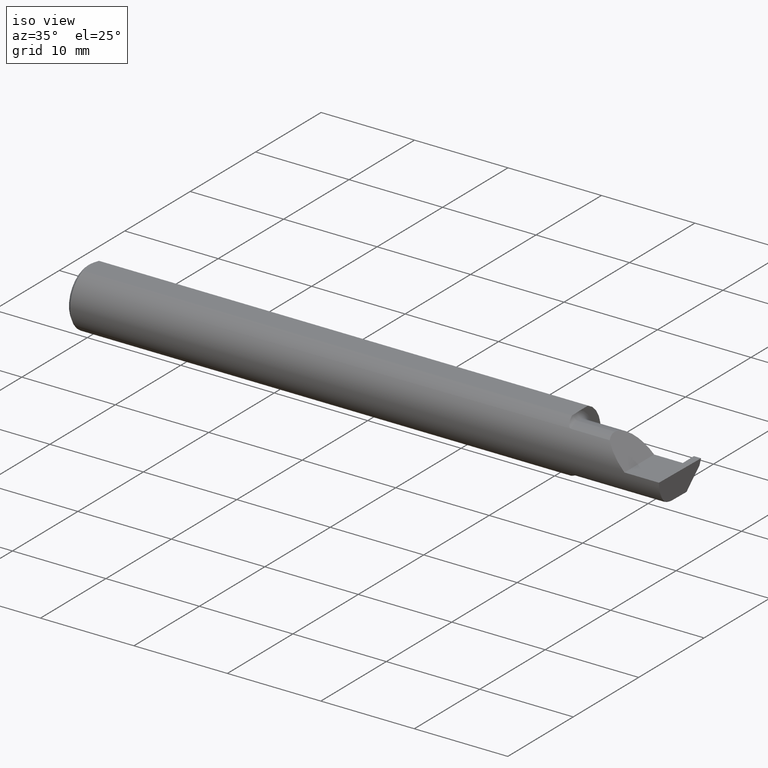
[diagram: clean part render]
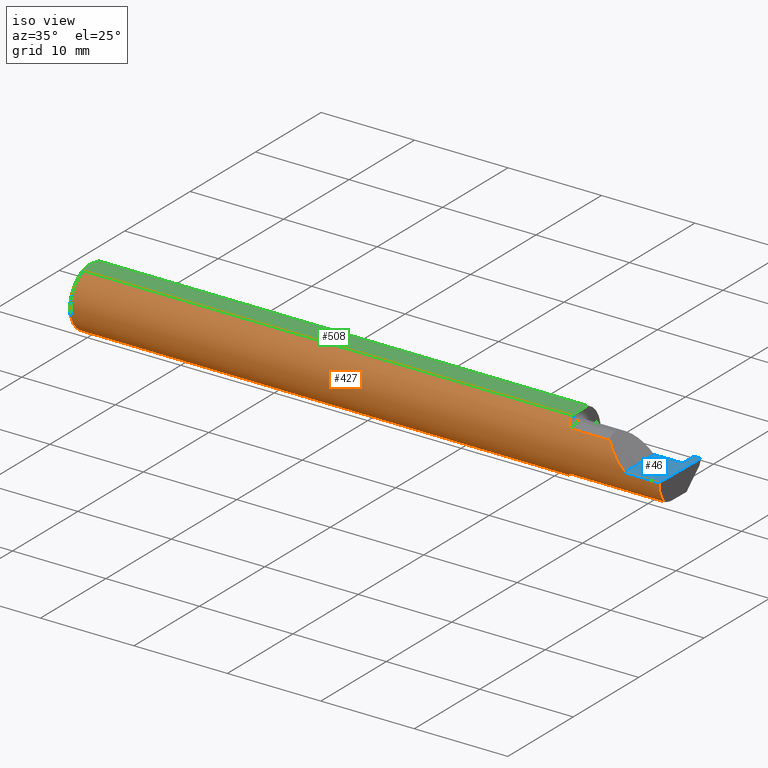
[diagram: same view with three faces highlighted in distinct colors, each labeled with its STEP entity id]
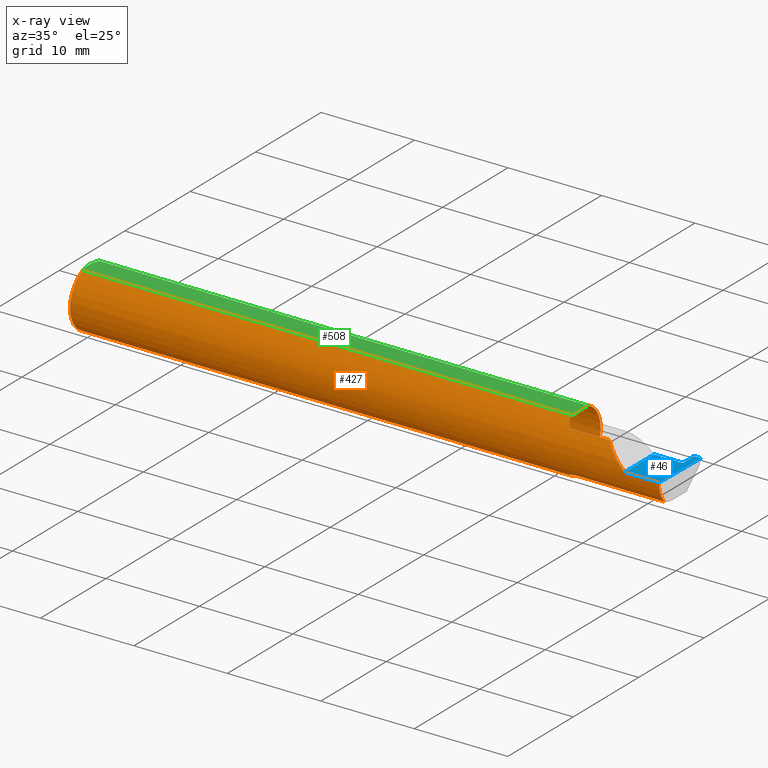
[diagram: x-ray of the same camera — body ghosted, the three highlighted faces saturated]
A machine part, iso view with three faces highlighted in distinct colors.
The next image is the same camera in x-ray (body ghosted, the three faces saturated) — at least one of them is partly hidden behind the body in this view.
Their STEP definitions:

[orange] entity #427 — the highlighted cylindrical surface (edge-blend (fillet) strip) has radius 3.1712 mm, axis along (-1, -0, -0).
#1 = ORIENTED_EDGE ( 'NONE', *, *, #593, .T. ) ;
#4 = VECTOR ( 'NONE', #554, 39.37007874015748143 ) ;
#8 = CARTESIAN_POINT ( 'NONE',  ( 2.075756598855984070, -0.04385000000000000009, -0.1168961077196328247 ) ) ;
#9 = LINE ( 'NONE', #251, #777 ) ;
#11 = EDGE_CURVE ( 'NONE', #609, #748, #454, .T. ) ;
#20 = CARTESIAN_POINT ( 'NONE',  ( 2.350000000000000089, -0.1248500000000000026, 1.836970198721028825E-17 ) ) ;
#21 = CARTESIAN_POINT ( 'NONE',  ( 2.089990549600693637, -0.08554147198584190204, 0.09096407607062390044 ) ) ;
#35 = ORIENTED_EDGE ( 'NONE', *, *, #626, .F. ) ;
#37 = CARTESIAN_POINT ( 'NONE',  ( 2.083278800716858115, -0.07573621487658313556, -0.09938639293507191275 ) ) ;
#72 = CIRCLE ( 'NONE', #484, 0.1248500000000000026 ) ;
#77 = DIRECTION ( 'NONE',  ( -1.000000000000000000, -0.000000000000000000, -0.000000000000000000 ) ) ;
#91 = DIRECTION ( 'NONE',  ( -1.000000000000000000, -0.000000000000000000, -0.000000000000000000 ) ) ;
#96 = CARTESIAN_POINT ( 'NONE',  ( 2.494033449660867152, -0.09015216647662482874, -0.08637192471845768493 ) ) ;
#97 = CARTESIAN_POINT ( 'NONE',  ( 2.287163018370355072, -0.1127002472623169216, 0.06283698162964553025 ) ) ;
#102 = CARTESIAN_POINT ( 'NONE',  ( 2.317406910344188997, -0.1248500000000000304, 0.03259308965581166062 ) ) ;
#105 = CARTESIAN_POINT ( 'NONE',  ( 2.080064983703085346, -0.06736177101644112708, -0.1052426774175050789 ) ) ;
#113 = ORIENTED_EDGE ( 'NONE', *, *, #676, .F. ) ;
#123 = DIRECTION ( 'NONE',  ( 1.000000000000000000, 0.000000000000000000, 0.000000000000000000 ) ) ;
#129 = EDGE_CURVE ( 'NONE', #541, #538, #597, .T. ) ;
#131 = VERTEX_POINT ( 'NONE', #753 ) ;
#137 = CARTESIAN_POINT ( 'NONE',  ( 2.284749999999999837, -0.09015216647662482874, 0.08637192471845768493 ) ) ;
#140 = EDGE_CURVE ( 'NONE', #718, #609, #271, .T. ) ;
#144 = AXIS2_PLACEMENT_3D ( 'NONE', #223, #91, #325 ) ;
#160 = VERTEX_POINT ( 'NONE', #569 ) ;
#163 = CARTESIAN_POINT ( 'NONE',  ( 2.494256244271084721, -0.1126860773865890480, -0.06285177167860772629 ) ) ;
#168 = CIRCLE ( 'NONE', #144, 0.1248500000000000026 ) ;
#175 = CARTESIAN_POINT ( 'NONE',  ( 2.494033449660867152, -0.09015216647662482874, -0.08637192471845768493 ) ) ;
#176 = CARTESIAN_POINT ( 'NONE',  ( 2.075000000000000178, 0.000000000000000000, 0.000000000000000000 ) ) ;
#184 = VECTOR ( 'NONE', #371, 39.37007874015748854 ) ;
#193 = CARTESIAN_POINT ( 'NONE',  ( 2.090875432832430825, -0.08647060418110404101, -0.09007670266896510014 ) ) ;
#194 = VECTOR ( 'NONE', #633, 39.37007874015748143 ) ;
#207 = CARTESIAN_POINT ( 'NONE',  ( 2.493072779947982820, -0.1248043149033065402, -0.09996577117162359916 ) ) ;
#210 = CARTESIAN_POINT ( 'NONE',  ( 3.749399456654637998E-32, -0.1248500000000000026, 3.061616997868380676E-16 ) ) ;
#215 = CARTESIAN_POINT ( 'NONE',  ( 2.078850144156349611, -0.06295012366509135371, -0.1079450122012246133 ) ) ;
#220 = CARTESIAN_POINT ( 'NONE',  ( 2.076929090759344287, -0.05370719728932715764, -0.1128289886859672464 ) ) ;
#223 = CARTESIAN_POINT ( 'NONE',  ( 0.01499999999999999944, 0.000000000000000000, 0.000000000000000000 ) ) ;
#232 = EDGE_CURVE ( 'NONE', #385, #281, #72, .T. ) ;
#234 =( BOUNDED_CURVE ( )  B_SPLINE_CURVE ( 3, ( #96, #163, #329, #769 ),
 .UNSPECIFIED., .F., .F. ) 
 B_SPLINE_CURVE_WITH_KNOTS ( ( 4, 4 ),
 ( 0.2190942387645155864, 0.9826237902196512941 ),
 .UNSPECIFIED. ) 
 CURVE ( )  GEOMETRIC_REPRESENTATION_ITEM ( )  RATIONAL_B_SPLINE_CURVE ( ( 1.000000000000000000, 0.9520057322288819623, 0.9520057322288819623, 1.000000000000000000 ) ) 
 REPRESENTATION_ITEM ( '' )  );
#240 = ORIENTED_EDGE ( 'NONE', *, *, #705, .F. ) ;
#243 = AXIS2_PLACEMENT_3D ( 'NONE', #575, #519, #393 ) ;
#247 = DIRECTION ( 'NONE',  ( 0.000000000000000000, 0.000000000000000000, 1.000000000000000000 ) ) ;
#248 = DIRECTION ( 'NONE',  ( 0.000000000000000000, 0.000000000000000000, -1.000000000000000000 ) ) ;
#251 = CARTESIAN_POINT ( 'NONE',  ( 2.284749999999999837, -0.09015216647662482874, -0.08637192471845768493 ) ) ;
#256 = CARTESIAN_POINT ( 'NONE',  ( 2.350000000000000089, -0.1248500000000000026, 1.836970198721028825E-17 ) ) ;
#271 = LINE ( 'NONE', #210, #338 ) ;
#273 = ORIENTED_EDGE ( 'NONE', *, *, #744, .F. ) ;
#274 = CARTESIAN_POINT ( 'NONE',  ( 2.263628075281542529, -0.09015216647662421812, 0.08637192471845822617 ) ) ;
#281 = VERTEX_POINT ( 'NONE', #349 ) ;
#318 = CARTESIAN_POINT ( 'NONE',  ( 2.086053217927678283, -0.08094812012684959868, 0.09514231764822832227 ) ) ;
#319 = ORIENTED_EDGE ( 'NONE', *, *, #129, .F. ) ;
#322 = CARTESIAN_POINT ( 'NONE',  ( 2.097259638933032022, -0.09015216647662444016, -0.08637192471845808739 ) ) ;
#325 = DIRECTION ( 'NONE',  ( 0.000000000000000000, 0.000000000000000000, 1.000000000000000000 ) ) ;
#329 = CARTESIAN_POINT ( 'NONE',  ( 2.494835769263151537, -0.1248351010429638308, -0.03262966116142157480 ) ) ;
#333 = CARTESIAN_POINT ( 'NONE',  ( 2.089311064734461265, -0.08485061678078631431, -0.09161469295857084527 ) ) ;
#334 = ORIENTED_EDGE ( 'NONE', *, *, #732, .T. ) ;
#336 = CARTESIAN_POINT ( 'NONE',  ( 2.075242610568498236, -0.03840785182185595115, -0.1189375631818110762 ) ) ;
#338 = VECTOR ( 'NONE', #643, 39.37007874015748143 ) ;
#349 = CARTESIAN_POINT ( 'NONE',  ( 2.075000000000000178, 0.04895916665957496944, 0.1148500000000000076 ) ) ;
#352 = DIRECTION ( 'NONE',  ( -1.000000000000000000, -0.000000000000000000, -0.000000000000000000 ) ) ;
#354 = AXIS2_PLACEMENT_3D ( 'NONE', #549, #542, #247 ) ;
#368 = LINE ( 'NONE', #137, #4 ) ;
#371 = DIRECTION ( 'NONE',  ( 0.02617296143184116158, -0.0004568507411563386858, 0.9996573249755575929 ) ) ;
#376 = CARTESIAN_POINT ( 'NONE',  ( 2.084117122045868964, -0.07738857672815914468, 0.09808127502738682446 ) ) ;
#381 = CARTESIAN_POINT ( 'NONE',  ( 2.100000000000000089, -0.09015216647662478711, -0.08637192471845771269 ) ) ;
#385 = VERTEX_POINT ( 'NONE', #497 ) ;
#391 = CARTESIAN_POINT ( 'NONE',  ( 2.100000000000000089, -0.09015216647662482874, 0.08637192471845768493 ) ) ;
#393 = DIRECTION ( 'NONE',  ( 0.000000000000000000, 0.000000000000000000, 1.000000000000000000 ) ) ;
#395 = VERTEX_POINT ( 'NONE', #615 ) ;
#415 = EDGE_CURVE ( 'NONE', #521, #131, #9, .T. ) ;
#419 = ORIENTED_EDGE ( 'NONE', *, *, #681, .F. ) ;
#420 = CYLINDRICAL_SURFACE ( 'NONE', #354, 0.1248500000000000026 ) ;
#422 = B_SPLINE_CURVE_WITH_KNOTS ( 'NONE', 3,
 ( #450, #336, #761, #688 ),
 .UNSPECIFIED., .F., .F.,
 ( 4, 4 ),
 ( 0.001640801893433564435, 0.002088276671954477758 ),
 .UNSPECIFIED. ) ;
#425 = CARTESIAN_POINT ( 'NONE',  ( 0.01499999999999999944, 0.000000000000000000, -0.1248500000000000026 ) ) ;
#427 = ADVANCED_FACE ( 'NONE', ( #776 ), #420, .T. ) ;
#441 = CARTESIAN_POINT ( 'NONE',  ( 2.091486677516400938, -0.08696861555842265445, 0.08959154238194109998 ) ) ;
#445 = LINE ( 'NONE', #207, #184 ) ;
#450 = CARTESIAN_POINT ( 'NONE',  ( 2.075756598855984070, -0.04385000000000000009, -0.1168961077196328247 ) ) ;
#454 =( BOUNDED_CURVE ( )  B_SPLINE_CURVE ( 3, ( #20, #102, #97, #274 ),
 .UNSPECIFIED., .F., .F. ) 
 B_SPLINE_CURVE_WITH_KNOTS ( ( 4, 4 ),
 ( 4.712388980384690562, 5.476375539154175520 ),
 .UNSPECIFIED. ) 
 CURVE ( )  GEOMETRIC_REPRESENTATION_ITEM ( )  RATIONAL_B_SPLINE_CURVE ( ( 1.000000000000000000, 0.9519489620492029847, 0.9519489620492029847, 1.000000000000000000 ) ) 
 REPRESENTATION_ITEM ( '' )  );
#456 = CARTESIAN_POINT ( 'NONE',  ( 2.075756598855984070, -0.04385000000000000009, -0.1168961077196328247 ) ) ;
#484 = AXIS2_PLACEMENT_3D ( 'NONE', #176, #123, #248 ) ;
#494 = CARTESIAN_POINT ( 'NONE',  ( 2.097502509400818838, -0.09015216647698107155, 0.08637192471808592675 ) ) ;
#496 = VECTOR ( 'NONE', #352, 39.37007874015748143 ) ;
#497 = CARTESIAN_POINT ( 'NONE',  ( 2.075000000000000622, -0.02715330672748003313, -0.1218614805168695830 ) ) ;
#502 = VERTEX_POINT ( 'NONE', #8 ) ;
#504 = CARTESIAN_POINT ( 'NONE',  ( 2.076326891871145719, -0.04895916665872582924, 0.1148500000000000076 ) ) ;
#519 = DIRECTION ( 'NONE',  ( -1.000000000000000000, -0.000000000000000000, -0.000000000000000000 ) ) ;
#520 = CARTESIAN_POINT ( 'NONE',  ( 2.263628075281542529, -0.09015216647662421812, 0.08637192471845822617 ) ) ;
#521 = VERTEX_POINT ( 'NONE', #175 ) ;
#524 = CARTESIAN_POINT ( 'NONE',  ( 2.495690077103728921, -0.1248499999950965084, 1.733801157256528502E-17 ) ) ;
#538 = VERTEX_POINT ( 'NONE', #425 ) ;
#541 = VERTEX_POINT ( 'NONE', #610 ) ;
#542 = DIRECTION ( 'NONE',  ( -1.000000000000000000, -0.000000000000000000, -0.000000000000000000 ) ) ;
#543 = EDGE_CURVE ( 'NONE', #281, #541, #655, .T. ) ;
#545 = B_SPLINE_CURVE_WITH_KNOTS ( 'NONE', 3,
 ( #381, #322, #734, #193, #333, #757, #37, #105, #215, #220, #764, #456 ),
 .UNSPECIFIED., .F., .F.,
 ( 4, 2, 2, 2, 2, 4 ),
 ( 1.963988863383734834E-07, 0.0002052720857047376818, 0.0004103477725231370198, 0.0008204991461599461583, 0.001230650519796755134, 0.001640801893433564435 ),
 .UNSPECIFIED. ) ;
#548 = EDGE_LOOP ( 'NONE', ( #755, #334, #1, #644, #650, #35, #113, #240, #752, #319, #563, #589, #273, #419 ) ) ;
#549 = CARTESIAN_POINT ( 'NONE',  ( 0.000000000000000000, 0.000000000000000000, 0.000000000000000000 ) ) ;
#554 = DIRECTION ( 'NONE',  ( 1.000000000000000000, 0.000000000000000000, 0.000000000000000000 ) ) ;
#562 = CARTESIAN_POINT ( 'NONE',  ( 0.01499999999999999944, -0.04895916665957456698, 0.1148500000000000076 ) ) ;
#563 = ORIENTED_EDGE ( 'NONE', *, *, #543, .F. ) ;
#569 = CARTESIAN_POINT ( 'NONE',  ( 2.076326891871145719, -0.04895916665872582924, 0.1148500000000000076 ) ) ;
#575 = CARTESIAN_POINT ( 'NONE',  ( 0.01499999999999999944, 0.000000000000000000, 0.000000000000000000 ) ) ;
#585 = CARTESIAN_POINT ( 'NONE',  ( 0.000000000000000000, -0.04895916665957456698, 0.1148500000000000076 ) ) ;
#589 = ORIENTED_EDGE ( 'NONE', *, *, #232, .F. ) ;
#593 = EDGE_CURVE ( 'NONE', #395, #718, #445, .T. ) ;
#597 = CIRCLE ( 'NONE', #243, 0.1248500000000000026 ) ;
#605 = B_SPLINE_CURVE_WITH_KNOTS ( 'NONE', 3,
 ( #504, #741, #679, #376, #318, #21, #441, #751, #494, #683 ),
 .UNSPECIFIED., .F., .F.,
 ( 4, 2, 2, 2, 4 ),
 ( 5.065792320106833029E-07, 0.0007388407001989857545, 0.001108007760682473870, 0.001292591290924218362, 0.001477174821165962420 ),
 .UNSPECIFIED. ) ;
#609 = VERTEX_POINT ( 'NONE', #256 ) ;
#610 = CARTESIAN_POINT ( 'NONE',  ( 0.01499999999999987454, 0.04895916665957496944, 0.1148500000000000076 ) ) ;
#615 = CARTESIAN_POINT ( 'NONE',  ( 2.495688583004118666, -0.1248499869621840785, -5.705736120969982501E-05 ) ) ;
#626 = EDGE_CURVE ( 'NONE', #742, #748, #368, .T. ) ;
#633 = DIRECTION ( 'NONE',  ( 1.000000000000000000, 0.000000000000000000, 0.000000000000000000 ) ) ;
#638 = LINE ( 'NONE', #585, #194 ) ;
#643 = DIRECTION ( 'NONE',  ( -1.000000000000000000, -0.000000000000000000, -0.000000000000000000 ) ) ;
#644 = ORIENTED_EDGE ( 'NONE', *, *, #140, .T. ) ;
#650 = ORIENTED_EDGE ( 'NONE', *, *, #11, .T. ) ;
#655 = LINE ( 'NONE', #720, #496 ) ;
#663 = VERTEX_POINT ( 'NONE', #562 ) ;
#676 = EDGE_CURVE ( 'NONE', #160, #742, #605, .T. ) ;
#679 = CARTESIAN_POINT ( 'NONE',  ( 2.079335346929612083, -0.06618116991694721063, 0.1062694618620804582 ) ) ;
#681 = EDGE_CURVE ( 'NONE', #131, #502, #545, .T. ) ;
#683 = CARTESIAN_POINT ( 'NONE',  ( 2.100000000000000089, -0.09015216647662482874, 0.08637192471845768493 ) ) ;
#688 = CARTESIAN_POINT ( 'NONE',  ( 2.075000000000000622, -0.02715330672748003313, -0.1218614805168695830 ) ) ;
#705 = EDGE_CURVE ( 'NONE', #663, #160, #638, .T. ) ;
#718 = VERTEX_POINT ( 'NONE', #524 ) ;
#720 = CARTESIAN_POINT ( 'NONE',  ( 0.000000000000000000, 0.04895916665957456698, 0.1148500000000000076 ) ) ;
#732 = EDGE_CURVE ( 'NONE', #521, #395, #234, .T. ) ;
#734 = CARTESIAN_POINT ( 'NONE',  ( 2.094784064659362510, -0.08911389870154515225, -0.08746251087962812754 ) ) ;
#735 = EDGE_CURVE ( 'NONE', #538, #663, #168, .T. ) ;
#741 = CARTESIAN_POINT ( 'NONE',  ( 2.077489051389807440, -0.05793447593674516671, 0.1110239341513692690 ) ) ;
#742 = VERTEX_POINT ( 'NONE', #391 ) ;
#744 = EDGE_CURVE ( 'NONE', #502, #385, #422, .T. ) ;
#748 = VERTEX_POINT ( 'NONE', #520 ) ;
#751 = CARTESIAN_POINT ( 'NONE',  ( 2.095195245915135285, -0.08928014009840806731, 0.08728826463238047173 ) ) ;
#752 = ORIENTED_EDGE ( 'NONE', *, *, #735, .F. ) ;
#753 = CARTESIAN_POINT ( 'NONE',  ( 2.100000000000000089, -0.09015216647662478711, -0.08637192471845771269 ) ) ;
#755 = ORIENTED_EDGE ( 'NONE', *, *, #415, .F. ) ;
#757 = CARTESIAN_POINT ( 'NONE',  ( 2.085226514481665738, -0.07966992494485837517, -0.09623747760188229583 ) ) ;
#761 = CARTESIAN_POINT ( 'NONE',  ( 2.075000000000000178, -0.03284222813693379872, -0.1205938689030582739 ) ) ;
#764 = CARTESIAN_POINT ( 'NONE',  ( 2.076227715916085348, -0.04883822427082836620, -0.1150249279297937410 ) ) ;
#769 = CARTESIAN_POINT ( 'NONE',  ( 2.495688583004118666, -0.1248499869621840785, -5.705736120969982501E-05 ) ) ;
#776 = FACE_OUTER_BOUND ( 'NONE', #548, .T. ) ;
#777 = VECTOR ( 'NONE', #77, 39.37007874015748143 ) ;

[blue] entity #46 — the highlighted planar face has unit normal (-0, 0, -1).
#13 = CARTESIAN_POINT ( 'NONE',  ( 2.469500000000000028, 0.1221499999999999808, -3.306546357697866753E-19 ) ) ;
#23 = VERTEX_POINT ( 'NONE', #561 ) ;
#38 = ORIENTED_EDGE ( 'NONE', *, *, #173, .T. ) ;
#46 = ADVANCED_FACE ( 'NONE', ( #328 ), #222, .F. ) ;
#48 = ORIENTED_EDGE ( 'NONE', *, *, #710, .F. ) ;
#53 = LINE ( 'NONE', #540, #135 ) ;
#92 = VERTEX_POINT ( 'NONE', #335 ) ;
#116 = EDGE_CURVE ( 'NONE', #201, #337, #216, .T. ) ;
#133 = CARTESIAN_POINT ( 'NONE',  ( 2.494380489674781209, -0.1999019447116721915, 6.881915332554903690E-19 ) ) ;
#135 = VECTOR ( 'NONE', #233, 39.37007874015748143 ) ;
#140 = EDGE_CURVE ( 'NONE', #718, #609, #271, .T. ) ;
#151 = DIRECTION ( 'NONE',  ( 1.000000000000000000, -0.000000000000000000, -0.000000000000000000 ) ) ;
#165 = DIRECTION ( 'NONE',  ( -1.000000000000000000, 0.000000000000000000, 1.224646799147352221E-16 ) ) ;
#173 = EDGE_CURVE ( 'NONE', #382, #201, #689, .T. ) ;
#181 = CARTESIAN_POINT ( 'NONE',  ( 2.350000000000000089, -0.2000000000000000111, 1.836970198721028825E-17 ) ) ;
#201 = VERTEX_POINT ( 'NONE', #725 ) ;
#210 = CARTESIAN_POINT ( 'NONE',  ( 3.749399456654637998E-32, -0.1248500000000000026, 3.061616997868380676E-16 ) ) ;
#214 = DIRECTION ( 'NONE',  ( 0.01742050049977531684, -0.9998482515673753346, -2.130797594924657633E-18 ) ) ;
#216 = LINE ( 'NONE', #506, #709 ) ;
#222 = PLANE ( 'NONE',  #737 ) ;
#233 = DIRECTION ( 'NONE',  ( 1.000000000000000000, 0.000000000000000000, 0.000000000000000000 ) ) ;
#256 = CARTESIAN_POINT ( 'NONE',  ( 2.350000000000000089, -0.1248500000000000026, 1.836970198721028825E-17 ) ) ;
#268 = DIRECTION ( 'NONE',  ( -1.000000000000000000, -1.575186606422338777E-15, 1.224646799147352221E-16 ) ) ;
#271 = LINE ( 'NONE', #210, #338 ) ;
#278 = CARTESIAN_POINT ( 'NONE',  ( 2.500000000000000000, -0.2000000000000000111, 0.000000000000000000 ) ) ;
#285 = EDGE_CURVE ( 'NONE', #23, #337, #53, .T. ) ;
#312 = EDGE_CURVE ( 'NONE', #609, #23, #477, .T. ) ;
#328 = FACE_OUTER_BOUND ( 'NONE', #438, .T. ) ;
#335 = CARTESIAN_POINT ( 'NONE',  ( 2.500000000000000444, 0.1221499999999999808, 1.947508823608312588E-17 ) ) ;
#337 = VERTEX_POINT ( 'NONE', #433 ) ;
#338 = VECTOR ( 'NONE', #643, 39.37007874015748143 ) ;
#382 = VERTEX_POINT ( 'NONE', #13 ) ;
#388 = EDGE_CURVE ( 'NONE', #718, #92, #426, .T. ) ;
#416 = DIRECTION ( 'NONE',  ( -0.000000000000000000, 1.000000000000000000, -0.000000000000000000 ) ) ;
#426 = LINE ( 'NONE', #133, #711 ) ;
#433 = CARTESIAN_POINT ( 'NONE',  ( 2.469500000000000028, 0.05414999999999999675, 5.204742006436173641E-17 ) ) ;
#438 = EDGE_LOOP ( 'NONE', ( #621, #457, #48, #38, #573, #708, #695 ) ) ;
#457 = ORIENTED_EDGE ( 'NONE', *, *, #388, .T. ) ;
#461 = CARTESIAN_POINT ( 'NONE',  ( 2.399999999999999911, 0.1221499999999999808, -3.306546357697866753E-19 ) ) ;
#477 = LINE ( 'NONE', #181, #598 ) ;
#506 = CARTESIAN_POINT ( 'NONE',  ( 2.499999999999999556, 0.05415000000000005920, 4.902673549315262119E-32 ) ) ;
#524 = CARTESIAN_POINT ( 'NONE',  ( 2.495690077103728921, -0.1248499999950965084, 1.733801157256528502E-17 ) ) ;
#540 = CARTESIAN_POINT ( 'NONE',  ( 2.075000000000000178, 0.05414999999999998981, 5.204748896376247001E-17 ) ) ;
#561 = CARTESIAN_POINT ( 'NONE',  ( 2.350000000000000089, 0.05414999999999988572, 1.836970198721028825E-17 ) ) ;
#573 = ORIENTED_EDGE ( 'NONE', *, *, #116, .T. ) ;
#598 = VECTOR ( 'NONE', #416, 39.37007874015748143 ) ;
#609 = VERTEX_POINT ( 'NONE', #256 ) ;
#621 = ORIENTED_EDGE ( 'NONE', *, *, #140, .F. ) ;
#643 = DIRECTION ( 'NONE',  ( -1.000000000000000000, -0.000000000000000000, -0.000000000000000000 ) ) ;
#669 = DIRECTION ( 'NONE',  ( 0.01744642479411464761, 0.9998477995484629233, -2.135106780035675284E-18 ) ) ;
#689 = LINE ( 'NONE', #756, #693 ) ;
#693 = VECTOR ( 'NONE', #214, 39.37007874015748143 ) ;
#694 = LINE ( 'NONE', #461, #750 ) ;
#695 = ORIENTED_EDGE ( 'NONE', *, *, #312, .F. ) ;
#697 = DIRECTION ( 'NONE',  ( -1.224646799147352221E-16, 0.000000000000000000, -1.000000000000000000 ) ) ;
#708 = ORIENTED_EDGE ( 'NONE', *, *, #285, .F. ) ;
#709 = VECTOR ( 'NONE', #268, 39.37007874015748143 ) ;
#710 = EDGE_CURVE ( 'NONE', #382, #92, #694, .T. ) ;
#711 = VECTOR ( 'NONE', #669, 39.37007874015748854 ) ;
#718 = VERTEX_POINT ( 'NONE', #524 ) ;
#725 = CARTESIAN_POINT ( 'NONE',  ( 2.470684773821554714, 0.05415000000000000369, 1.033206487548650521E-17 ) ) ;
#737 = AXIS2_PLACEMENT_3D ( 'NONE', #278, #697, #165 ) ;
#750 = VECTOR ( 'NONE', #151, 39.37007874015748143 ) ;
#756 = CARTESIAN_POINT ( 'NONE',  ( 2.475120418573686809, -0.2004334805406639275, 3.046869975786050821E-18 ) ) ;

[green] entity #508 — the highlighted planar face has unit normal (0, -0, 1).
#16 = CARTESIAN_POINT ( 'NONE',  ( 2.076339737573316579, -0.04810771292169582075, 0.1148500000000000215 ) ) ;
#52 = DIRECTION ( 'NONE',  ( 0.000000000000000000, -0.000000000000000000, 1.000000000000000000 ) ) ;
#58 = AXIS2_PLACEMENT_3D ( 'NONE', #189, #52, #307 ) ;
#59 = DIRECTION ( 'NONE',  ( -0.000000000000000000, 1.000000000000000000, 0.000000000000000000 ) ) ;
#62 = ORIENTED_EDGE ( 'NONE', *, *, #543, .T. ) ;
#67 = FACE_OUTER_BOUND ( 'NONE', #145, .T. ) ;
#68 = CARTESIAN_POINT ( 'NONE',  ( 2.075000000000000178, -0.1248500000000000165, 0.1148500000000000076 ) ) ;
#75 = EDGE_CURVE ( 'NONE', #541, #632, #526, .T. ) ;
#79 = CARTESIAN_POINT ( 'NONE',  ( 2.076090261609497389, -0.02916889382056604002, 0.1148499999999999938 ) ) ;
#94 = CARTESIAN_POINT ( 'NONE',  ( 0.004999999999999990563, 1.454187663965904829E-17, 0.1148500000000000076 ) ) ;
#101 = ORIENTED_EDGE ( 'NONE', *, *, #343, .T. ) ;
#115 = CARTESIAN_POINT ( 'NONE',  ( 0.009415874254822407391, -0.03313958207962815206, 0.1148500000000000076 ) ) ;
#136 = CARTESIAN_POINT ( 'NONE',  ( 2.076362484150212850, -0.04555293709188857482, 0.1148500000000000076 ) ) ;
#138 = CARTESIAN_POINT ( 'NONE',  ( 2.076365755776839794, -0.04385000000000001397, 0.1148500000000000076 ) ) ;
#145 = EDGE_LOOP ( 'NONE', ( #300, #101, #377, #533, #62, #727, #714 ) ) ;
#159 = CARTESIAN_POINT ( 'NONE',  ( 2.076365755776839794, -0.04385000000000001397, 0.1148500000000000076 ) ) ;
#160 = VERTEX_POINT ( 'NONE', #569 ) ;
#188 = EDGE_CURVE ( 'NONE', #209, #281, #656, .T. ) ;
#189 = CARTESIAN_POINT ( 'NONE',  ( 2.500000000000000000, -0.1248500000000000165, 0.1148500000000000076 ) ) ;
#192 = CARTESIAN_POINT ( 'NONE',  ( 2.076365755776839350, -0.03650543323727815925, 0.1148500000000000215 ) ) ;
#194 = VECTOR ( 'NONE', #633, 39.37007874015748143 ) ;
#204 = VECTOR ( 'NONE', #59, 39.37007874015748143 ) ;
#209 = VERTEX_POINT ( 'NONE', #527 ) ;
#281 = VERTEX_POINT ( 'NONE', #349 ) ;
#296 = CARTESIAN_POINT ( 'NONE',  ( 0.01195732443765547617, -0.04120008761723503027, 0.1148500000000000076 ) ) ;
#300 = ORIENTED_EDGE ( 'NONE', *, *, #705, .T. ) ;
#307 = DIRECTION ( 'NONE',  ( 1.000000000000000000, 0.000000000000000000, -0.000000000000000000 ) ) ;
#315 = CARTESIAN_POINT ( 'NONE',  ( 2.075000000000000622, 0.0001781444078671173391, 0.1148500000000000076 ) ) ;
#324 = CARTESIAN_POINT ( 'NONE',  ( 0.01499999999999987454, 0.04895916665957496944, 0.1148500000000000076 ) ) ;
#343 = EDGE_CURVE ( 'NONE', #160, #722, #481, .T. ) ;
#345 = EDGE_CURVE ( 'NONE', #722, #209, #373, .T. ) ;
#348 = PLANE ( 'NONE',  #58 ) ;
#349 = CARTESIAN_POINT ( 'NONE',  ( 2.075000000000000178, 0.04895916665957496944, 0.1148500000000000076 ) ) ;
#352 = DIRECTION ( 'NONE',  ( -1.000000000000000000, -0.000000000000000000, -0.000000000000000000 ) ) ;
#365 = CARTESIAN_POINT ( 'NONE',  ( 0.01499999999999999944, -0.04895916665957456698, 0.1148500000000000076 ) ) ;
#366 = CARTESIAN_POINT ( 'NONE',  ( 2.075000000000000178, -0.007185469346090044528, 0.1148500000000000076 ) ) ;
#373 = B_SPLINE_CURVE_WITH_KNOTS ( 'NONE', 3,
 ( #138, #192, #79, #553, #366, #315 ),
 .UNSPECIFIED., .F., .F.,
 ( 4, 2, 4 ),
 ( 0.009485158816280120364, 0.01004274199597734486, 0.01060032517567456936 ),
 .UNSPECIFIED. ) ;
#377 = ORIENTED_EDGE ( 'NONE', *, *, #345, .T. ) ;
#400 = B_SPLINE_CURVE_WITH_KNOTS ( 'NONE', 3,
 ( #480, #487, #659, #115, #296, #365 ),
 .UNSPECIFIED., .F., .F.,
 ( 4, 2, 4 ),
 ( 0.003658435455108827606, 0.004289327297787134258, 0.004920219140465441343 ),
 .UNSPECIFIED. ) ;
#448 = EDGE_CURVE ( 'NONE', #632, #663, #400, .T. ) ;
#453 = CARTESIAN_POINT ( 'NONE',  ( 0.004999999999999962808, 0.008410227287019804779, 0.1148500000000000076 ) ) ;
#480 = CARTESIAN_POINT ( 'NONE',  ( 0.004999999999999990563, 1.454187663965904829E-17, 0.1148500000000000076 ) ) ;
#481 = B_SPLINE_CURVE_WITH_KNOTS ( 'NONE', 3,
 ( #731, #16, #671, #136, #675, #617 ),
 .UNSPECIFIED., .F., .F.,
 ( 4, 2, 4 ),
 ( 0.009355882855483714511, 0.009420520835881917437, 0.009485158816280120364 ),
 .UNSPECIFIED. ) ;
#487 = CARTESIAN_POINT ( 'NONE',  ( 0.004999999999999964542, -0.008410771716546819321, 0.1148500000000000215 ) ) ;
#496 = VECTOR ( 'NONE', #352, 39.37007874015748143 ) ;
#508 = ADVANCED_FACE ( 'NONE', ( #67 ), #348, .T. ) ;
#526 = B_SPLINE_CURVE_WITH_KNOTS ( 'NONE', 3,
 ( #324, #704, #635, #759, #453, #94 ),
 .UNSPECIFIED., .F., .F.,
 ( 4, 2, 4 ),
 ( 0.002396733445051244405, 0.003027584450080036006, 0.003658435455108827606 ),
 .UNSPECIFIED. ) ;
#527 = CARTESIAN_POINT ( 'NONE',  ( 2.075000000000000622, 0.0001781444078671173391, 0.1148500000000000076 ) ) ;
#533 = ORIENTED_EDGE ( 'NONE', *, *, #188, .T. ) ;
#541 = VERTEX_POINT ( 'NONE', #610 ) ;
#543 = EDGE_CURVE ( 'NONE', #281, #541, #655, .T. ) ;
#553 = CARTESIAN_POINT ( 'NONE',  ( 2.075400391910593445, -0.01449986171080063120, 0.1148500000000000076 ) ) ;
#560 = CARTESIAN_POINT ( 'NONE',  ( 0.004999999999999990563, 1.454187663965904829E-17, 0.1148500000000000076 ) ) ;
#562 = CARTESIAN_POINT ( 'NONE',  ( 0.01499999999999999944, -0.04895916665957456698, 0.1148500000000000076 ) ) ;
#569 = CARTESIAN_POINT ( 'NONE',  ( 2.076326891871145719, -0.04895916665872582924, 0.1148500000000000076 ) ) ;
#585 = CARTESIAN_POINT ( 'NONE',  ( 0.000000000000000000, -0.04895916665957456698, 0.1148500000000000076 ) ) ;
#610 = CARTESIAN_POINT ( 'NONE',  ( 0.01499999999999987454, 0.04895916665957496944, 0.1148500000000000076 ) ) ;
#617 = CARTESIAN_POINT ( 'NONE',  ( 2.076365755776839794, -0.04385000000000001397, 0.1148500000000000076 ) ) ;
#632 = VERTEX_POINT ( 'NONE', #560 ) ;
#633 = DIRECTION ( 'NONE',  ( 1.000000000000000000, 0.000000000000000000, 0.000000000000000000 ) ) ;
#635 = CARTESIAN_POINT ( 'NONE',  ( 0.009410502401328750890, 0.03310661131402438395, 0.1148499999999999938 ) ) ;
#638 = LINE ( 'NONE', #585, #194 ) ;
#655 = LINE ( 'NONE', #720, #496 ) ;
#656 = LINE ( 'NONE', #68, #204 ) ;
#659 = CARTESIAN_POINT ( 'NONE',  ( 0.005932194444709715242, -0.01671525318617308672, 0.1148499999999999938 ) ) ;
#663 = VERTEX_POINT ( 'NONE', #562 ) ;
#671 = CARTESIAN_POINT ( 'NONE',  ( 2.076349474474287859, -0.04725615793095022665, 0.1148499999999999938 ) ) ;
#675 = CARTESIAN_POINT ( 'NONE',  ( 2.076365755776839350, -0.04470142088163401445, 0.1148500000000000076 ) ) ;
#704 = CARTESIAN_POINT ( 'NONE',  ( 0.01193974418109659125, 0.04115525648180412555, 0.1148500000000000215 ) ) ;
#705 = EDGE_CURVE ( 'NONE', #663, #160, #638, .T. ) ;
#714 = ORIENTED_EDGE ( 'NONE', *, *, #448, .T. ) ;
#720 = CARTESIAN_POINT ( 'NONE',  ( 0.000000000000000000, 0.04895916665957456698, 0.1148500000000000076 ) ) ;
#722 = VERTEX_POINT ( 'NONE', #159 ) ;
#727 = ORIENTED_EDGE ( 'NONE', *, *, #75, .T. ) ;
#731 = CARTESIAN_POINT ( 'NONE',  ( 2.076326891871145719, -0.04895916665872582924, 0.1148500000000000076 ) ) ;
#759 = CARTESIAN_POINT ( 'NONE',  ( 0.005947935873631229539, 0.01679708999422689641, 0.1148500000000000076 ) ) ;